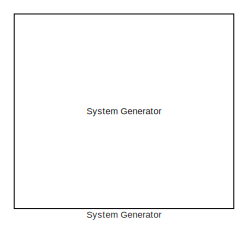
[diagram: root canvas - part 1/12, top left region]
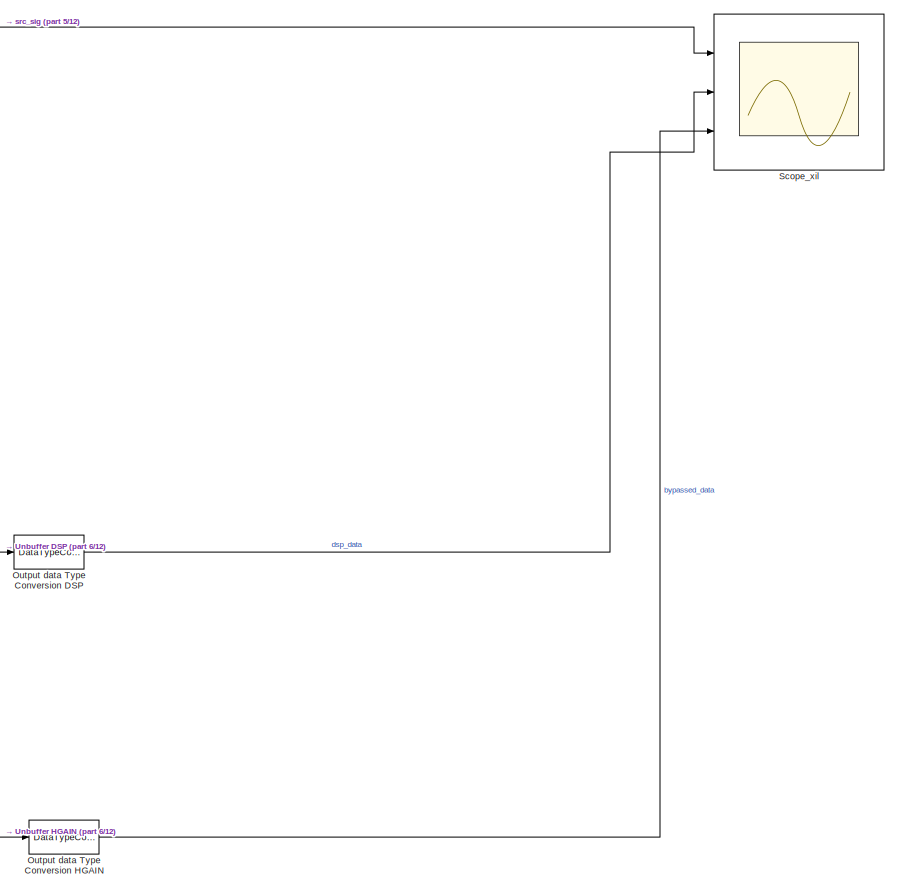
[diagram: root canvas - part 2/12, middle right region]
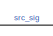
[diagram: root canvas - part 3/12, central region]
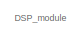
[diagram: root canvas - part 4/12, middle left region]
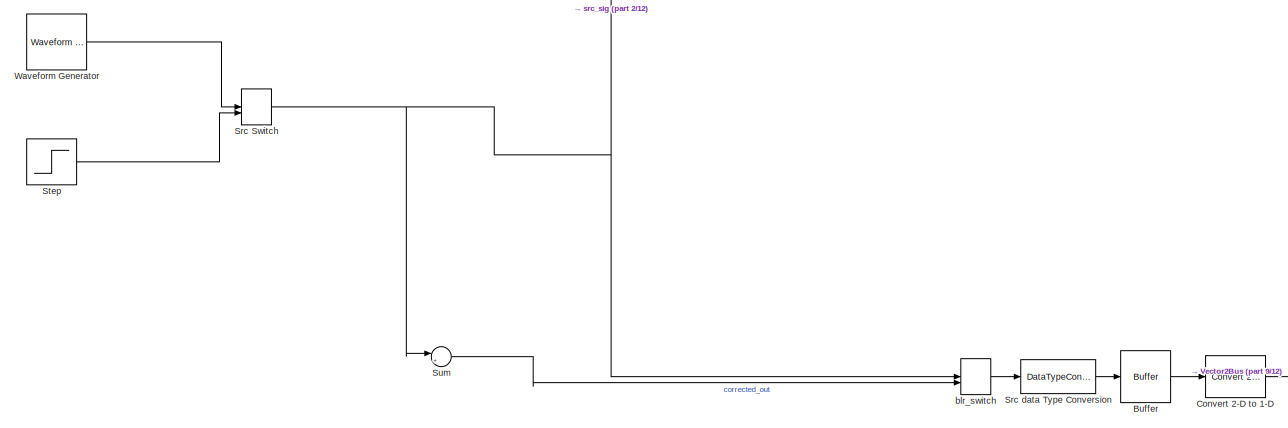
[diagram: root canvas - part 5/12, middle left region]
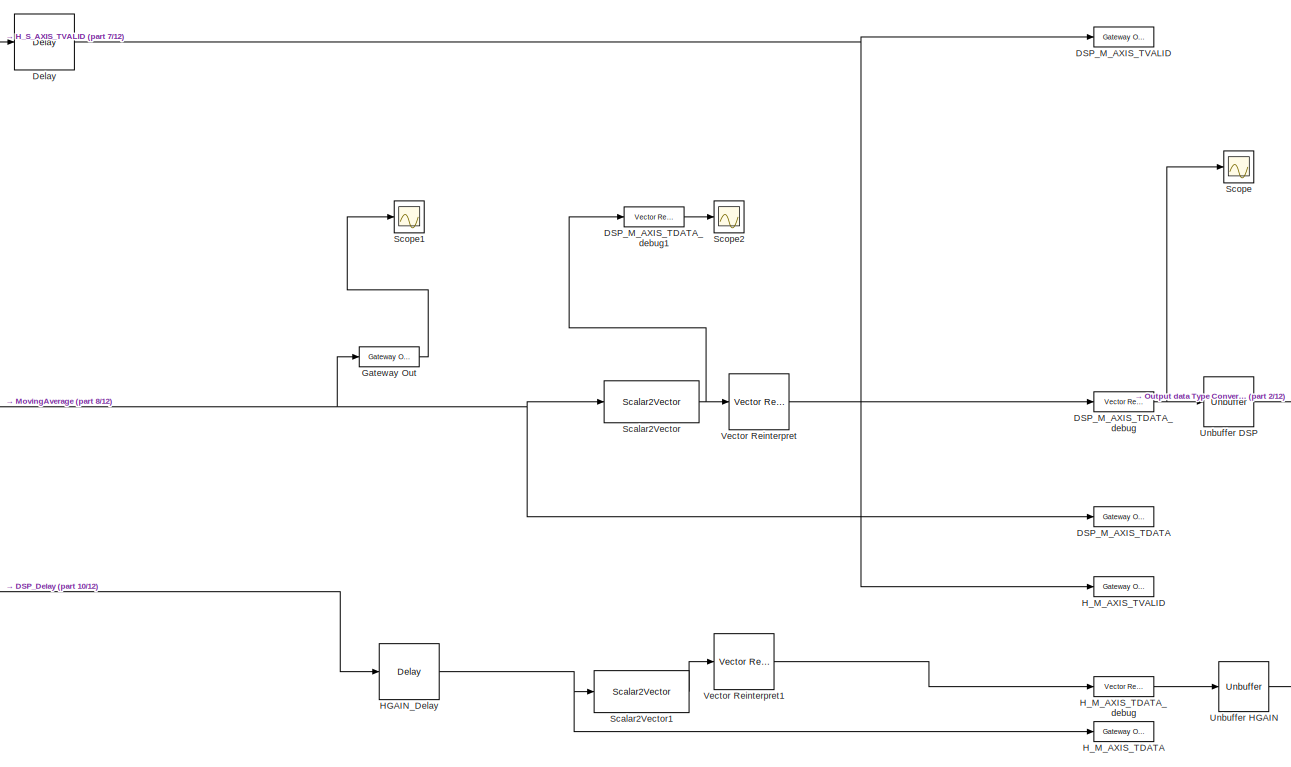
[diagram: root canvas - part 6/12, middle right region]
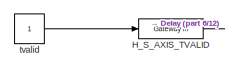
[diagram: root canvas - part 7/12, middle left region]
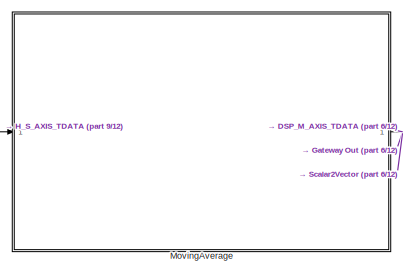
[diagram: root canvas - part 8/12, central region]
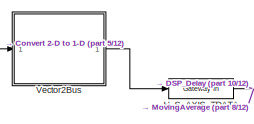
[diagram: root canvas - part 9/12, middle left region]
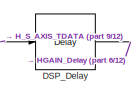
[diagram: root canvas - part 10/12, bottom center region]
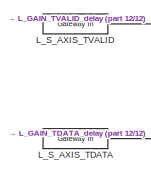
[diagram: root canvas - part 11/12, bottom left region]
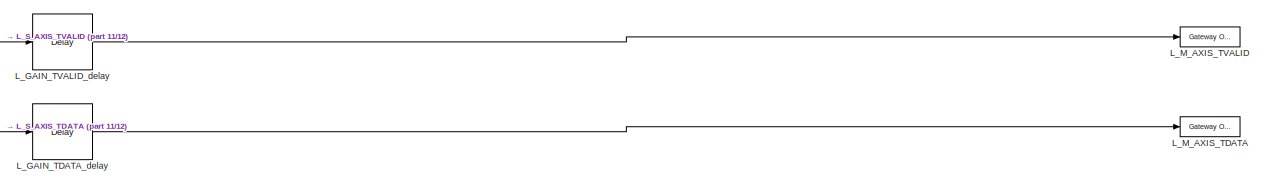
[diagram: root canvas - part 12/12, bottom right region]
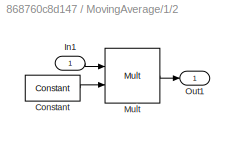
MODEL slx_868760c8d147
KIND model
CONFIG AbsTol = auto
CONFIG EnableMultiTasking = off
CONFIG FixedStep = auto
CONFIG MaxStep = auto
CONFIG MinStep = auto
CONFIG RelTol = 1e-3
CONFIG SampleTimeConstraint = Unconstrained
CONFIG Solver = VariableStepAuto
CONFIG SolverName = VariableStepAuto
CONFIG StartTime = 0.0
CONFIG StopTime = 100e-6
BLOCK [Reference]  System Generator  REF=xbsIndex_r4/ System Generator
  AttributesFormatString = System\nGenerator
  Ports = []
  SourceBlock = xbsIndex_r4/ System Generator
  SourceType = Xilinx System Generator Block
  Tag = genX
  UserDataPersistent = on
BLOCK [Buffer] Buffer
  N = 8
  OutputFrames = off
BLOCK [Reference] Convert 2-D to 1-D  REF=dspsigattribs/Convert 2-D to 1-D
  Ports = [1, 1]
  SourceBlock = dspsigattribs/Convert 2-D to 1-D
  SourceProductBaseCode = DS
  SourceProductName = DSP System Toolbox
  SourceType = Convert 2-D to 1-D
BLOCK [Reference] DSP_Delay  REF=xbsIndex_r4/Delay
  Ports = [1, 1]
  SourceBlock = xbsIndex_r4/Delay
  SourceType = Xilinx Delay Block
BLOCK [Reference] DSP_M_AXIS_TDATA  REF=xbsIndex_r4/Gateway Out
  Ports = [1, 1]
  SourceBlock = xbsIndex_r4/Gateway Out
  SourceType = Xilinx Gateway Out Block
BLOCK [Reference] DSP_M_AXIS_TDATA_debug  REF=xrbsSSR_Library/Vector Real Gateway Out
  Ports = [1, 1]
  SourceBlock = xrbsSSR_Library/Vector Real Gateway Out
  SourceProductName = Xilinx SSR Blockset
  SourceType = Xilinx Vector Gateway Out Block
BLOCK [Reference] DSP_M_AXIS_TDATA_debug1  REF=xrbsSSR_Library/Vector Real Gateway Out
  Ports = [1, 1]
  SourceBlock = xrbsSSR_Library/Vector Real Gateway Out
  SourceProductName = Xilinx SSR Blockset
  SourceType = Xilinx Vector Gateway Out Block
BLOCK [Reference] DSP_M_AXIS_TVALID  REF=xbsIndex_r4/Gateway Out
  Ports = [1, 1]
  SourceBlock = xbsIndex_r4/Gateway Out
  SourceType = Xilinx Gateway Out Block
BLOCK [Reference] Delay  REF=xbsIndex_r4/Delay
  Ports = [1, 1]
  SourceBlock = xbsIndex_r4/Delay
  SourceType = Xilinx Delay Block
BLOCK [Reference] Gateway Out  REF=xbsIndex_r4/Gateway Out
  Ports = [1, 1]
  SourceBlock = xbsIndex_r4/Gateway Out
  SourceType = Xilinx Gateway Out Block
BLOCK [Reference] HGAIN_Delay  REF=xbsIndex_r4/Delay
  Ports = [1, 1]
  SourceBlock = xbsIndex_r4/Delay
  SourceType = Xilinx Delay Block
BLOCK [Reference] H_M_AXIS_TDATA  REF=xbsIndex_r4/Gateway Out
  Ports = [1, 1]
  SourceBlock = xbsIndex_r4/Gateway Out
  SourceType = Xilinx Gateway Out Block
BLOCK [Reference] H_M_AXIS_TDATA_debug  REF=xrbsSSR_Library/Vector Real Gateway Out
  Ports = [1, 1]
  SourceBlock = xrbsSSR_Library/Vector Real Gateway Out
  SourceProductName = Xilinx SSR Blockset
  SourceType = Xilinx Vector Gateway Out Block
BLOCK [Reference] H_M_AXIS_TVALID  REF=xbsIndex_r4/Gateway Out
  Ports = [1, 1]
  SourceBlock = xbsIndex_r4/Gateway Out
  SourceType = Xilinx Gateway Out Block
BLOCK [Reference] H_S_AXIS_TDATA  REF=xbsIndex_r4/Gateway In
  Ports = [1, 1]
  SourceBlock = xbsIndex_r4/Gateway In
  SourceType = Xilinx Gateway In Block
BLOCK [Reference] H_S_AXIS_TVALID  REF=xbsIndex_r4/Gateway In
  Ports = [1, 1]
  SourceBlock = xbsIndex_r4/Gateway In
  SourceType = Xilinx Gateway In Block
BLOCK [Reference] L_GAIN_TDATA_delay  REF=xbsIndex_r4/Delay
  Ports = [1, 1]
  SourceBlock = xbsIndex_r4/Delay
  SourceType = Xilinx Delay Block
BLOCK [Reference] L_GAIN_TVALID_delay  REF=xbsIndex_r4/Delay
  Ports = [1, 1]
  SourceBlock = xbsIndex_r4/Delay
  SourceType = Xilinx Delay Block
BLOCK [Reference] L_M_AXIS_TDATA  REF=xbsIndex_r4/Gateway Out
  Ports = [1, 1]
  SourceBlock = xbsIndex_r4/Gateway Out
  SourceType = Xilinx Gateway Out Block
BLOCK [Reference] L_M_AXIS_TVALID  REF=xbsIndex_r4/Gateway Out
  Ports = [1, 1]
  SourceBlock = xbsIndex_r4/Gateway Out
  SourceType = Xilinx Gateway Out Block
BLOCK [Reference] L_S_AXIS_TDATA  REF=xbsIndex_r4/Gateway In
  Ports = [1, 1]
  SourceBlock = xbsIndex_r4/Gateway In
  SourceType = Xilinx Gateway In Block
BLOCK [Reference] L_S_AXIS_TVALID  REF=xbsIndex_r4/Gateway In
  Ports = [1, 1]
  SourceBlock = xbsIndex_r4/Gateway In
  SourceType = Xilinx Gateway In Block
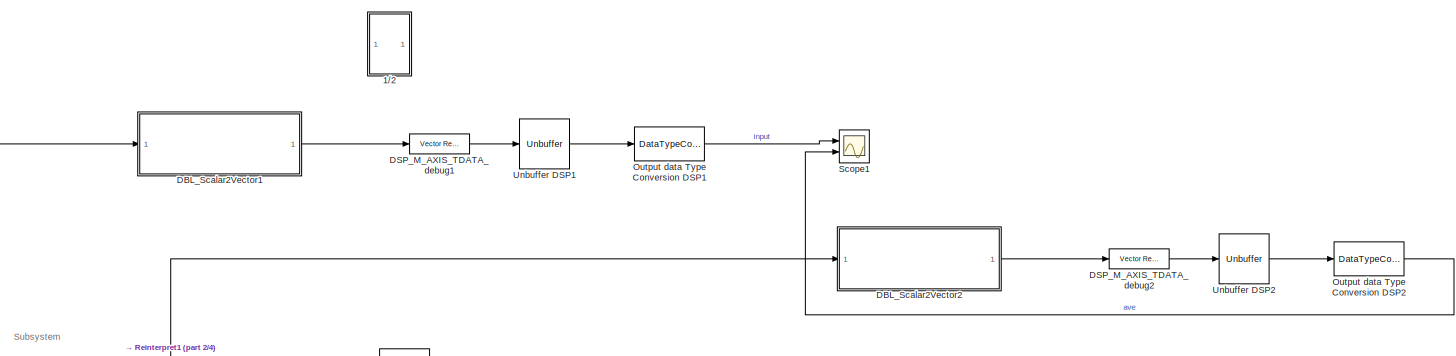
[diagram: MovingAverage - part 1/4, top center region]
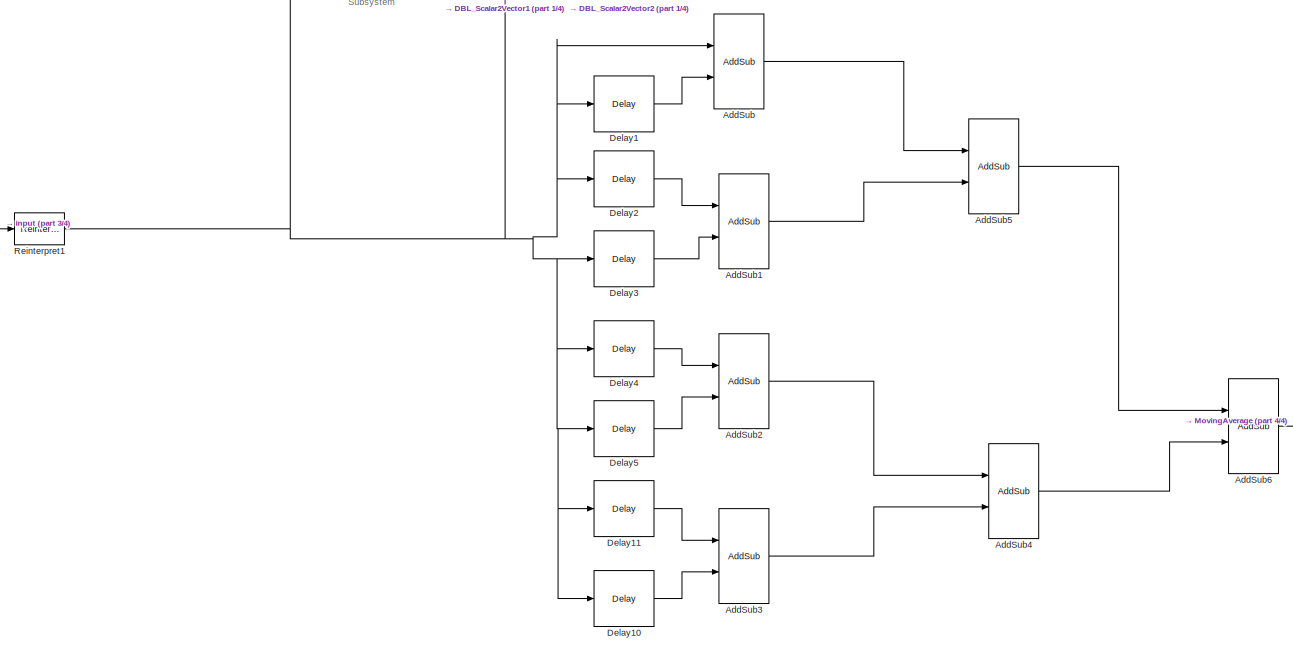
[diagram: MovingAverage - part 2/4, central region]
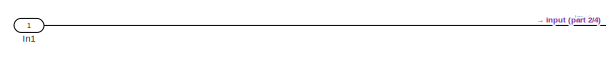
[diagram: MovingAverage - part 3/4, bottom left region]
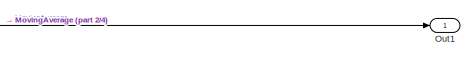
[diagram: MovingAverage - part 4/4, bottom right region]
BLOCK [SubSystem] MovingAverage
  Ports = [1, 1]
  RequestExecContextInheritance = off
BLOCK [SubSystem] MovingAverage/1//2
  Commented = on
  Ports = [1, 1]
  RequestExecContextInheritance = off
BLOCK [Reference] MovingAverage/1//2/Constant  REF=xbsIndex_r4/Constant
  Ports = [0, 1]
  SourceBlock = xbsIndex_r4/Constant
  SourceType = Xilinx Constant Block Block
BLOCK [Inport] MovingAverage/1//2/In1
  IconDisplay = Port number
BLOCK [Reference] MovingAverage/1//2/Mult  REF=xbsIndex_r4/Mult
  Ports = [2, 1]
  SourceBlock = xbsIndex_r4/Mult
  SourceType = Xilinx Multiplier Block
BLOCK [Outport] MovingAverage/1//2/Out1
  IconDisplay = Port number
BLOCK [Reference] MovingAverage/AddSub  REF=xbsIndex_r4/AddSub
  Ports = [2, 1]
  SourceBlock = xbsIndex_r4/AddSub
  SourceType = Xilinx Adder/Subtracter Block
BLOCK [Reference] MovingAverage/AddSub1  REF=xbsIndex_r4/AddSub
  Ports = [2, 1]
  SourceBlock = xbsIndex_r4/AddSub
  SourceType = Xilinx Adder/Subtracter Block
BLOCK [Reference] MovingAverage/AddSub2  REF=xbsIndex_r4/AddSub
  Ports = [2, 1]
  SourceBlock = xbsIndex_r4/AddSub
  SourceType = Xilinx Adder/Subtracter Block
BLOCK [Reference] MovingAverage/AddSub3  REF=xbsIndex_r4/AddSub
  Ports = [2, 1]
  SourceBlock = xbsIndex_r4/AddSub
  SourceType = Xilinx Adder/Subtracter Block
BLOCK [Reference] MovingAverage/AddSub4  REF=xbsIndex_r4/AddSub
  Ports = [2, 1]
  SourceBlock = xbsIndex_r4/AddSub
  SourceType = Xilinx Adder/Subtracter Block
BLOCK [Reference] MovingAverage/AddSub5  REF=xbsIndex_r4/AddSub
  Ports = [2, 1]
  SourceBlock = xbsIndex_r4/AddSub
  SourceType = Xilinx Adder/Subtracter Block
BLOCK [Reference] MovingAverage/AddSub6  REF=xbsIndex_r4/AddSub
  Ports = [2, 1]
  SourceBlock = xbsIndex_r4/AddSub
  SourceType = Xilinx Adder/Subtracter Block
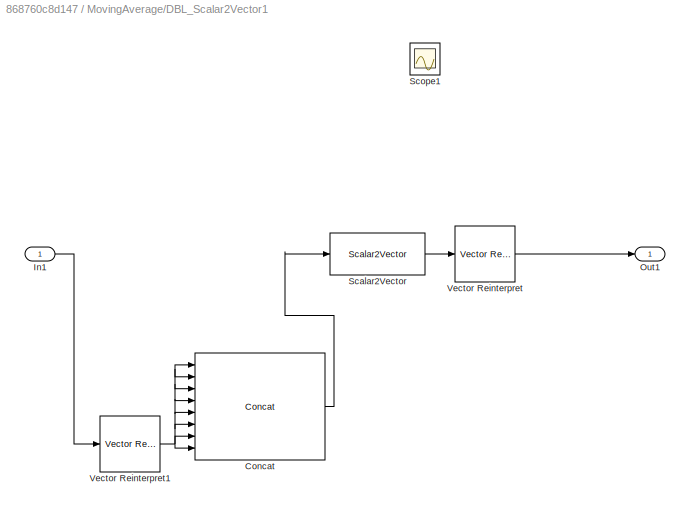
BLOCK [SubSystem] MovingAverage/DBL_Scalar2Vector1
  Commented = on
  Ports = [1, 1]
  RequestExecContextInheritance = off
BLOCK [Reference] MovingAverage/DBL_Scalar2Vector1/Concat  REF=xbsIndex_r4/Concat
  Ports = [8, 1]
  SourceBlock = xbsIndex_r4/Concat
  SourceType = Xilinx Bus Concatenator Block
BLOCK [Inport] MovingAverage/DBL_Scalar2Vector1/In1
  IconDisplay = Port number
BLOCK [Outport] MovingAverage/DBL_Scalar2Vector1/Out1
  IconDisplay = Port number
BLOCK [Reference] MovingAverage/DBL_Scalar2Vector1/Scalar2Vector  REF=xrbsSSR_Library/Scalar2Vector
  Ports = [1, 1]
  SourceBlock = xrbsSSR_Library/Scalar2Vector
  SourceProductName = Xilinx SSR Blockset
  SourceType = Xilinx Scalar2Vector Block
BLOCK [Scope] MovingAverage/DBL_Scalar2Vector1/Scope1
  Floating = off
  NumInputPorts = 1
  Ports = [1]
  ScopeSpecificationString = Simulink.scopes.TimeScopeBlockCfg('CurrentConfiguration', extmgr.ConfigurationSet(extmgr.Configuration('Core','General UI',true),extmgr.Configuration('Core','Source UI',true),extmgr.Configuration('Sources','WiredSimulink',true,'DataLoggingVariableName','ScopeData3'),extmgr.Configuration('Visuals','Time Domain',true,'SerializedDisplays',{struct('MinYLimReal','-1.00000','MaxYLimReal','0.34203','YLab...<+1420ch>
BLOCK [Reference] MovingAverage/DBL_Scalar2Vector1/Vector Reinterpret  REF=xrbsSSR_Library/Vector Reinterpret
  Ports = [1, 1]
  SourceBlock = xrbsSSR_Library/Vector Reinterpret
  SourceProductName = Xilinx SSR Blockset
  SourceType = Xilinx Vector Type Reinterpreter Block
BLOCK [Reference] MovingAverage/DBL_Scalar2Vector1/Vector Reinterpret1  REF=xrbsSSR_Library/Vector Reinterpret
  Ports = [1, 1]
  SourceBlock = xrbsSSR_Library/Vector Reinterpret
  SourceProductName = Xilinx SSR Blockset
  SourceType = Xilinx Vector Type Reinterpreter Block
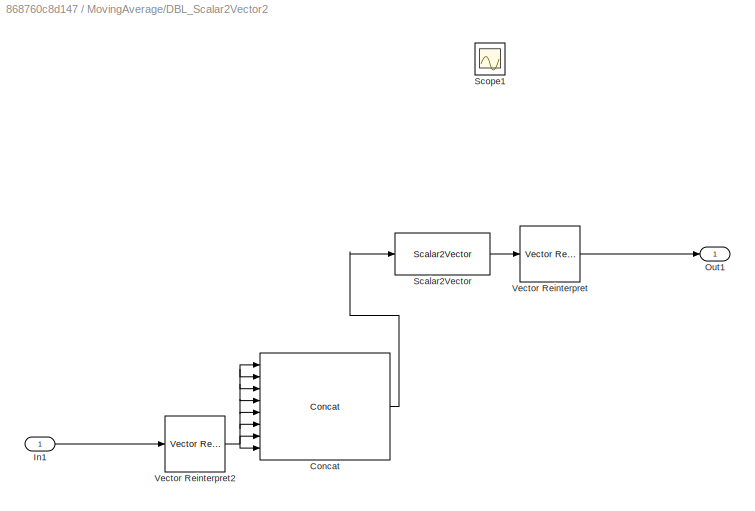
BLOCK [SubSystem] MovingAverage/DBL_Scalar2Vector2
  Commented = on
  Ports = [1, 1]
  RequestExecContextInheritance = off
BLOCK [Reference] MovingAverage/DBL_Scalar2Vector2/Concat  REF=xbsIndex_r4/Concat
  Ports = [8, 1]
  SourceBlock = xbsIndex_r4/Concat
  SourceType = Xilinx Bus Concatenator Block
BLOCK [Inport] MovingAverage/DBL_Scalar2Vector2/In1
  IconDisplay = Port number
BLOCK [Outport] MovingAverage/DBL_Scalar2Vector2/Out1
  IconDisplay = Port number
BLOCK [Reference] MovingAverage/DBL_Scalar2Vector2/Scalar2Vector  REF=xrbsSSR_Library/Scalar2Vector
  Ports = [1, 1]
  SourceBlock = xrbsSSR_Library/Scalar2Vector
  SourceProductName = Xilinx SSR Blockset
  SourceType = Xilinx Scalar2Vector Block
BLOCK [Scope] MovingAverage/DBL_Scalar2Vector2/Scope1
  Floating = off
  NumInputPorts = 1
  Ports = [1]
  ScopeSpecificationString = Simulink.scopes.TimeScopeBlockCfg('CurrentConfiguration', extmgr.ConfigurationSet(extmgr.Configuration('Core','General UI',true),extmgr.Configuration('Core','Source UI',true),extmgr.Configuration('Sources','WiredSimulink',true,'DataLoggingVariableName','ScopeData3'),extmgr.Configuration('Visuals','Time Domain',true,'SerializedDisplays',{struct('MinYLimReal','-1.00000','MaxYLimReal','0.34203','YLab...<+1420ch>
BLOCK [Reference] MovingAverage/DBL_Scalar2Vector2/Vector Reinterpret  REF=xrbsSSR_Library/Vector Reinterpret
  Ports = [1, 1]
  SourceBlock = xrbsSSR_Library/Vector Reinterpret
  SourceProductName = Xilinx SSR Blockset
  SourceType = Xilinx Vector Type Reinterpreter Block
BLOCK [Reference] MovingAverage/DBL_Scalar2Vector2/Vector Reinterpret2  REF=xrbsSSR_Library/Vector Reinterpret
  Ports = [1, 1]
  SourceBlock = xrbsSSR_Library/Vector Reinterpret
  SourceProductName = Xilinx SSR Blockset
  SourceType = Xilinx Vector Type Reinterpreter Block
BLOCK [Reference] MovingAverage/DSP_M_AXIS_TDATA_debug1  REF=xrbsSSR_Library/Vector Real Gateway Out
  Commented = on
  Ports = [1, 1]
  SourceBlock = xrbsSSR_Library/Vector Real Gateway Out
  SourceProductName = Xilinx SSR Blockset
  SourceType = Xilinx Vector Gateway Out Block
BLOCK [Reference] MovingAverage/DSP_M_AXIS_TDATA_debug2  REF=xrbsSSR_Library/Vector Real Gateway Out
  Commented = on
  Ports = [1, 1]
  SourceBlock = xrbsSSR_Library/Vector Real Gateway Out
  SourceProductName = Xilinx SSR Blockset
  SourceType = Xilinx Vector Gateway Out Block
BLOCK [Reference] MovingAverage/Delay1  REF=xbsIndex_r4/Delay
  Ports = [1, 1]
  SourceBlock = xbsIndex_r4/Delay
  SourceType = Xilinx Delay Block
BLOCK [Reference] MovingAverage/Delay10  REF=xbsIndex_r4/Delay
  Ports = [1, 1]
  SourceBlock = xbsIndex_r4/Delay
  SourceType = Xilinx Delay Block
BLOCK [Reference] MovingAverage/Delay11  REF=xbsIndex_r4/Delay
  Ports = [1, 1]
  SourceBlock = xbsIndex_r4/Delay
  SourceType = Xilinx Delay Block
BLOCK [Reference] MovingAverage/Delay2  REF=xbsIndex_r4/Delay
  Ports = [1, 1]
  SourceBlock = xbsIndex_r4/Delay
  SourceType = Xilinx Delay Block
BLOCK [Reference] MovingAverage/Delay3  REF=xbsIndex_r4/Delay
  Ports = [1, 1]
  SourceBlock = xbsIndex_r4/Delay
  SourceType = Xilinx Delay Block
BLOCK [Reference] MovingAverage/Delay4  REF=xbsIndex_r4/Delay
  Ports = [1, 1]
  SourceBlock = xbsIndex_r4/Delay
  SourceType = Xilinx Delay Block
BLOCK [Reference] MovingAverage/Delay5  REF=xbsIndex_r4/Delay
  Ports = [1, 1]
  SourceBlock = xbsIndex_r4/Delay
  SourceType = Xilinx Delay Block
BLOCK [Inport] MovingAverage/In1
  IconDisplay = Port number
BLOCK [Outport] MovingAverage/Out1
  IconDisplay = Port number
BLOCK [DataTypeConversion] MovingAverage/Output data Type Conversion DSP1
  Commented = on
  OutDataTypeStr = double
  RndMeth = Floor
  SaturateOnIntegerOverflow = off
BLOCK [DataTypeConversion] MovingAverage/Output data Type Conversion DSP2
  Commented = on
  OutDataTypeStr = double
  RndMeth = Floor
  SaturateOnIntegerOverflow = off
BLOCK [Reference] MovingAverage/Reinterpret1  REF=xbsIndex_r4/Reinterpret
  Ports = [1, 1]
  SourceBlock = xbsIndex_r4/Reinterpret
  SourceType = Xilinx Type Reinterpreter Block
BLOCK [Scope] MovingAverage/Scope1
  Commented = on
  Floating = off
  NumInputPorts = 2
  Ports = [2]
  ScopeSpecificationString = Simulink.scopes.TimeScopeBlockCfg('CurrentConfiguration', extmgr.ConfigurationSet(extmgr.Configuration('Core','General UI',true),extmgr.Configuration('Core','Source UI',true),extmgr.Configuration('Sources','WiredSimulink',true,'DataLoggingVariableName','ScopeData3'),extmgr.Configuration('Visuals','Time Domain',true,'SerializedDisplays',{struct('MinYLimReal','-1152.1875','MaxYLimReal','129.6875','Y...<+1488ch>
BLOCK [Unbuffer] MovingAverage/Unbuffer DSP1
  Commented = on
  Ports = [1, 1]
BLOCK [Unbuffer] MovingAverage/Unbuffer DSP2
  Commented = on
  Ports = [1, 1]
BLOCK [DataTypeConversion] Output data Type Conversion DSP
  OutDataTypeStr = double
  RndMeth = Floor
  SaturateOnIntegerOverflow = off
BLOCK [DataTypeConversion] Output data Type Conversion HGAIN
  OutDataTypeStr = double
  RndMeth = Floor
  SaturateOnIntegerOverflow = off
BLOCK [Reference] Scalar2Vector  REF=xrbsSSR_Library/Scalar2Vector
  Ports = [1, 1]
  SourceBlock = xrbsSSR_Library/Scalar2Vector
  SourceProductName = Xilinx SSR Blockset
  SourceType = Xilinx Scalar2Vector Block
BLOCK [Reference] Scalar2Vector1  REF=xrbsSSR_Library/Scalar2Vector
  Ports = [1, 1]
  SourceBlock = xrbsSSR_Library/Scalar2Vector
  SourceProductName = Xilinx SSR Blockset
  SourceType = Xilinx Scalar2Vector Block
BLOCK [Scope] Scope
  Floating = off
  NumInputPorts = 1
  Ports = [1]
  ScopeSpecificationString = Simulink.scopes.TimeScopeBlockCfg('CurrentConfiguration', extmgr.ConfigurationSet(extmgr.Configuration('Core','General UI',true),extmgr.Configuration('Core','Source UI',true),extmgr.Configuration('Sources','WiredSimulink',true,'DataLoggingVariableName','ScopeData1'),extmgr.Configuration('Visuals','Time Domain',true,'SerializedDisplays',{struct('MinYLimReal','-2432.03906','MaxYLimReal','1408.35156'...<+1594ch>
BLOCK [Scope] Scope1
  Floating = off
  NumInputPorts = 1
  Ports = [1]
  ScopeSpecificationString = Simulink.scopes.TimeScopeBlockCfg('CurrentConfiguration', extmgr.ConfigurationSet(extmgr.Configuration('Core','General UI',true),extmgr.Configuration('Core','Source UI',true),extmgr.Configuration('Sources','WiredSimulink',true,'DataLoggingVariableName','ScopeData2'),extmgr.Configuration('Visuals','Time Domain',true,'SerializedDisplays',{struct('MinYLimReal','-15950979342048106358778224481174290432...<+1694ch>
BLOCK [Scope] Scope2
  Floating = off
  NumInputPorts = 1
  Ports = [1]
  ScopeSpecificationString = Simulink.scopes.TimeScopeBlockCfg('CurrentConfiguration', extmgr.ConfigurationSet(extmgr.Configuration('Core','General UI',true),extmgr.Configuration('Core','Source UI',true),extmgr.Configuration('Sources','WiredSimulink',true,'DataLoggingVariableName','ScopeData3'),extmgr.Configuration('Visuals','Time Domain',true,'SerializedDisplays',{struct('MinYLimReal','-6144.375','MaxYLimReal','55299.375','Y...<+1622ch>
BLOCK [Scope] Scope_xil
  Floating = off
  NumInputPorts = 3
  Ports = [3]
  ScopeSpecificationString = Simulink.scopes.TimeScopeBlockCfg('CurrentConfiguration', extmgr.ConfigurationSet(extmgr.Configuration('Core','General UI',true),extmgr.Configuration('Core','Source UI',true),extmgr.Configuration('Sources','WiredSimulink',true),extmgr.Configuration('Visuals','Time Domain',true,'SerializedDisplays',{struct('MinYLimReal','-2432.03906','MaxYLimReal','1408.35156','YLabelReal','','MinYLimMag','  0.0000...<+1565ch>
BLOCK [ManualSwitch] Src Switch
  CurrentSetting = 0
BLOCK [DataTypeConversion] Src data Type Conversion
  OutDataTypeStr = fixdt(1,16,4)
  OutMax = 2047
  OutMin = -2048
  RndMeth = Floor
  SaturateOnIntegerOverflow = off
BLOCK [Step] Step
  After = -1024
  SampleTime = 1e-9
  Time = 50e-6
BLOCK [Sum] Sum
  AccumDataTypeStr = Inherit: Same as first input
  IconShape = round
  InputSameDT = off
  Inputs = |+-
  OutDataTypeStr = Inherit: Inherit via internal rule
  Ports = [2, 1]
  SaturateOnIntegerOverflow = off
BLOCK [Unbuffer] Unbuffer DSP
  Ports = [1, 1]
BLOCK [Unbuffer] Unbuffer HGAIN
  Ports = [1, 1]
BLOCK [Reference] Vector Reinterpret  REF=xrbsSSR_Library/Vector Reinterpret
  Ports = [1, 1]
  SourceBlock = xrbsSSR_Library/Vector Reinterpret
  SourceProductName = Xilinx SSR Blockset
  SourceType = Xilinx Vector Type Reinterpreter Block
BLOCK [Reference] Vector Reinterpret1  REF=xrbsSSR_Library/Vector Reinterpret
  Ports = [1, 1]
  SourceBlock = xrbsSSR_Library/Vector Reinterpret
  SourceProductName = Xilinx SSR Blockset
  SourceType = Xilinx Vector Type Reinterpreter Block
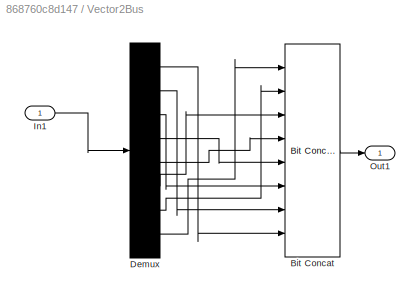
BLOCK [SubSystem] Vector2Bus
  Ports = [1, 1]
  RequestExecContextInheritance = off
BLOCK [Reference] Vector2Bus/Bit Concat  REF=hdlsllib/Logic and Bit
Operations/Bit Concat
  Ports = [8, 1]
  SourceBlock = hdlsllib/Logic and Bit\nOperations/Bit Concat
  SourceProductBaseCode = HD
  SourceProductName = HDL Coder
  SourceType = Bit Concat
BLOCK [Demux] Vector2Bus/Demux
  DisplayOption = bar
  Outputs = 8
  Ports = [1, 8]
BLOCK [Inport] Vector2Bus/In1
  IconDisplay = Port number
BLOCK [Outport] Vector2Bus/Out1
  IconDisplay = Port number
BLOCK [Reference] Waveform Generator  REF=simulink/Sources/Waveform
Generator
  Ports = [0, 1]
  SourceBlock = simulink/Sources/Waveform\nGenerator
  SourceProductBaseCode = SL
  SourceProductName = Simulink
  SourceType = WaveformGenerator
BLOCK [ManualSwitch] blr_switch
  CurrentSetting = 0
BLOCK [Constant] tvalid
  OutDataTypeStr = Inherit: Inherit via back propagation
  SampleTime = 1/125e6
  VectorParams1D = off
ANNOTATION (root): DSP_module
ANNOTATION MovingAverage: Subsystem
LINE Buffer:1 -> Convert 2-D to 1-D:1
LINE Convert 2-D to 1-D:1 -> Vector2Bus:1
LINE DSP_Delay:1 -> HGAIN_Delay:1
LINE DSP_M_AXIS_TDATA_debug1:1 -> Scope2:1
NET DSP_M_AXIS_TDATA_debug:1 -> Scope:1, Unbuffer DSP:1
NET Delay:1 -> DSP_M_AXIS_TVALID:1, H_M_AXIS_TVALID:1
LINE Gateway Out:1 -> Scope1:1
NET HGAIN_Delay:1 -> H_M_AXIS_TDATA:1, Scalar2Vector1:1
LINE H_M_AXIS_TDATA_debug:1 -> Unbuffer HGAIN:1
NET H_S_AXIS_TDATA:1 -> DSP_Delay:1, MovingAverage:1
LINE H_S_AXIS_TVALID:1 -> Delay:1
LINE L_GAIN_TDATA_delay:1 -> L_M_AXIS_TDATA:1
LINE L_GAIN_TVALID_delay:1 -> L_M_AXIS_TVALID:1
LINE L_S_AXIS_TDATA:1 -> L_GAIN_TDATA_delay:1
LINE L_S_AXIS_TVALID:1 -> L_GAIN_TVALID_delay:1
LINE MovingAverage/1//2/Constant:1 -> MovingAverage/1//2/Mult:2
LINE MovingAverage/1//2/In1:1 -> MovingAverage/1//2/Mult:1
LINE MovingAverage/1//2/Mult:1 -> MovingAverage/1//2/Out1:1
LINE MovingAverage/AddSub1:1 -> MovingAverage/AddSub5:2
LINE MovingAverage/AddSub2:1 -> MovingAverage/AddSub4:1
LINE MovingAverage/AddSub3:1 -> MovingAverage/AddSub4:2
LINE MovingAverage/AddSub4:1 -> MovingAverage/AddSub6:2
LINE MovingAverage/AddSub5:1 -> MovingAverage/AddSub6:1
LINE MovingAverage/AddSub6:1 -> MovingAverage/Out1:1
LINE MovingAverage/AddSub:1 -> MovingAverage/AddSub5:1
LINE MovingAverage/DBL_Scalar2Vector1/Concat:1 -> MovingAverage/DBL_Scalar2Vector1/Scalar2Vector:1
LINE MovingAverage/DBL_Scalar2Vector1/In1:1 -> MovingAverage/DBL_Scalar2Vector1/Vector Reinterpret1:1
LINE MovingAverage/DBL_Scalar2Vector1/Scalar2Vector:1 -> MovingAverage/DBL_Scalar2Vector1/Vector Reinterpret:1
NET MovingAverage/DBL_Scalar2Vector1/Vector Reinterpret1:1 -> MovingAverage/DBL_Scalar2Vector1/Concat:1, MovingAverage/DBL_Scalar2Vector1/Concat:2, MovingAverage/DBL_Scalar2Vector1/Concat:3, MovingAverage/DBL_Scalar2Vector1/Concat:4, MovingAverage/DBL_Scalar2Vector1/Concat:5, MovingAverage/DBL_Scalar2Vector1/Concat:6, MovingAverage/DBL_Scalar2Vector1/Concat:7, MovingAverage/DBL_Scalar2Vector1/Concat:8
LINE MovingAverage/DBL_Scalar2Vector1/Vector Reinterpret:1 -> MovingAverage/DBL_Scalar2Vector1/Out1:1
LINE MovingAverage/DBL_Scalar2Vector1:1 -> MovingAverage/DSP_M_AXIS_TDATA_debug1:1
LINE MovingAverage/DBL_Scalar2Vector2/Concat:1 -> MovingAverage/DBL_Scalar2Vector2/Scalar2Vector:1
LINE MovingAverage/DBL_Scalar2Vector2/In1:1 -> MovingAverage/DBL_Scalar2Vector2/Vector Reinterpret2:1
LINE MovingAverage/DBL_Scalar2Vector2/Scalar2Vector:1 -> MovingAverage/DBL_Scalar2Vector2/Vector Reinterpret:1
NET MovingAverage/DBL_Scalar2Vector2/Vector Reinterpret2:1 -> MovingAverage/DBL_Scalar2Vector2/Concat:1, MovingAverage/DBL_Scalar2Vector2/Concat:2, MovingAverage/DBL_Scalar2Vector2/Concat:3, MovingAverage/DBL_Scalar2Vector2/Concat:4, MovingAverage/DBL_Scalar2Vector2/Concat:5, MovingAverage/DBL_Scalar2Vector2/Concat:6, MovingAverage/DBL_Scalar2Vector2/Concat:7, MovingAverage/DBL_Scalar2Vector2/Concat:8
LINE MovingAverage/DBL_Scalar2Vector2/Vector Reinterpret:1 -> MovingAverage/DBL_Scalar2Vector2/Out1:1
LINE MovingAverage/DBL_Scalar2Vector2:1 -> MovingAverage/DSP_M_AXIS_TDATA_debug2:1
LINE MovingAverage/DSP_M_AXIS_TDATA_debug1:1 -> MovingAverage/Unbuffer DSP1:1
LINE MovingAverage/DSP_M_AXIS_TDATA_debug2:1 -> MovingAverage/Unbuffer DSP2:1
LINE MovingAverage/Delay10:1 -> MovingAverage/AddSub3:2
LINE MovingAverage/Delay11:1 -> MovingAverage/AddSub3:1
LINE MovingAverage/Delay1:1 -> MovingAverage/AddSub:2
LINE MovingAverage/Delay2:1 -> MovingAverage/AddSub1:1
LINE MovingAverage/Delay3:1 -> MovingAverage/AddSub1:2
LINE MovingAverage/Delay4:1 -> MovingAverage/AddSub2:1
LINE MovingAverage/Delay5:1 -> MovingAverage/AddSub2:2
LINE MovingAverage/In1:1 -> MovingAverage/Reinterpret1:1
LINE MovingAverage/Output data Type Conversion DSP1:1 -> MovingAverage/Scope1:1
LINE MovingAverage/Output data Type Conversion DSP2:1 -> MovingAverage/Scope1:2
NET MovingAverage/Reinterpret1:1 -> MovingAverage/AddSub:1, MovingAverage/DBL_Scalar2Vector1:1, MovingAverage/DBL_Scalar2Vector2:1, MovingAverage/Delay10:1, MovingAverage/Delay11:1, MovingAverage/Delay1:1, MovingAverage/Delay2:1, MovingAverage/Delay3:1, MovingAverage/Delay4:1, MovingAverage/Delay5:1
LINE MovingAverage/Unbuffer DSP1:1 -> MovingAverage/Output data Type Conversion DSP1:1
LINE MovingAverage/Unbuffer DSP2:1 -> MovingAverage/Output data Type Conversion DSP2:1
NET MovingAverage:1 -> DSP_M_AXIS_TDATA:1, Gateway Out:1, Scalar2Vector:1
LINE Output data Type Conversion DSP:1 -> Scope_xil:2
LINE Output data Type Conversion HGAIN:1 -> Scope_xil:3
LINE Scalar2Vector1:1 -> Vector Reinterpret1:1
NET Scalar2Vector:1 -> DSP_M_AXIS_TDATA_debug1:1, Vector Reinterpret:1
NET Src Switch:1 -> Scope_xil:1, Sum:1, blr_switch:1
LINE Src data Type Conversion:1 -> Buffer:1
LINE Step:1 -> Src Switch:2
LINE Sum:1 -> blr_switch:2
LINE Unbuffer DSP:1 -> Output data Type Conversion DSP:1
LINE Unbuffer HGAIN:1 -> Output data Type Conversion HGAIN:1
LINE Vector Reinterpret1:1 -> H_M_AXIS_TDATA_debug:1
LINE Vector Reinterpret:1 -> DSP_M_AXIS_TDATA_debug:1
LINE Vector2Bus/Bit Concat:1 -> Vector2Bus/Out1:1
LINE Vector2Bus/Demux:1 -> Vector2Bus/Bit Concat:8
LINE Vector2Bus/Demux:2 -> Vector2Bus/Bit Concat:7
LINE Vector2Bus/Demux:3 -> Vector2Bus/Bit Concat:6
LINE Vector2Bus/Demux:4 -> Vector2Bus/Bit Concat:5
LINE Vector2Bus/Demux:5 -> Vector2Bus/Bit Concat:4
LINE Vector2Bus/Demux:6 -> Vector2Bus/Bit Concat:3
LINE Vector2Bus/Demux:7 -> Vector2Bus/Bit Concat:2
LINE Vector2Bus/Demux:8 -> Vector2Bus/Bit Concat:1
LINE Vector2Bus/In1:1 -> Vector2Bus/Demux:1
LINE Vector2Bus:1 -> H_S_AXIS_TDATA:1
LINE Waveform Generator:1 -> Src Switch:1
LINE blr_switch:1 -> Src data Type Conversion:1
LINE tvalid:1 -> H_S_AXIS_TVALID:1
note: NET lines group one-source signal fan-out (src -> all destinations, sorted); 1:1 wires keep LINE
